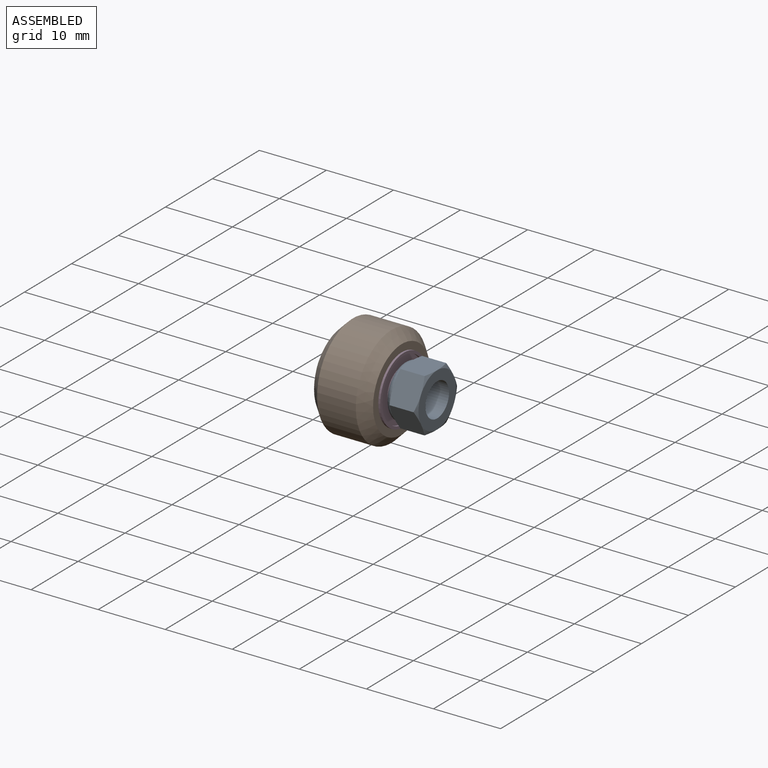
[diagram: assembled view]
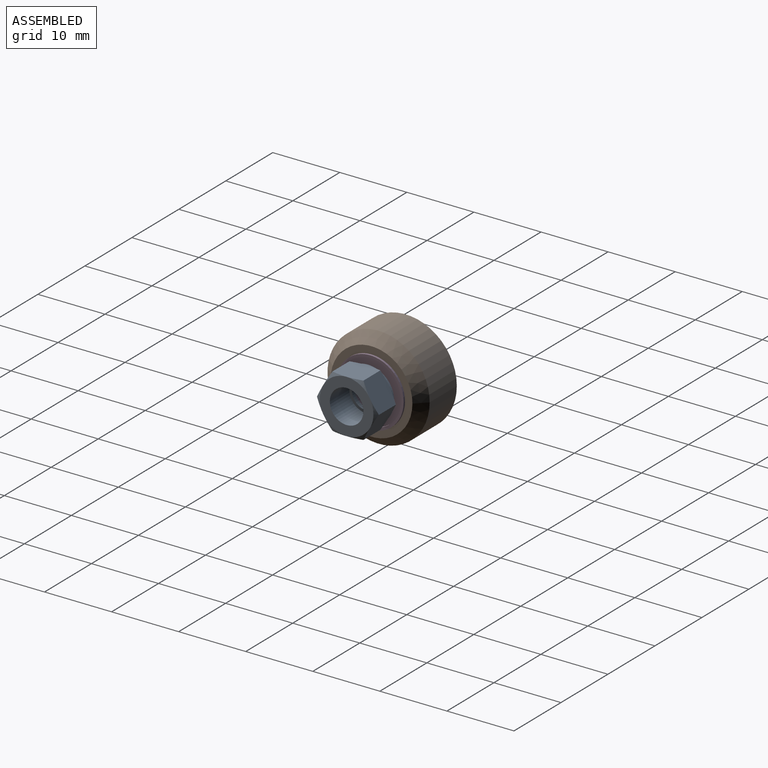
[diagram: assembled view, second angle]
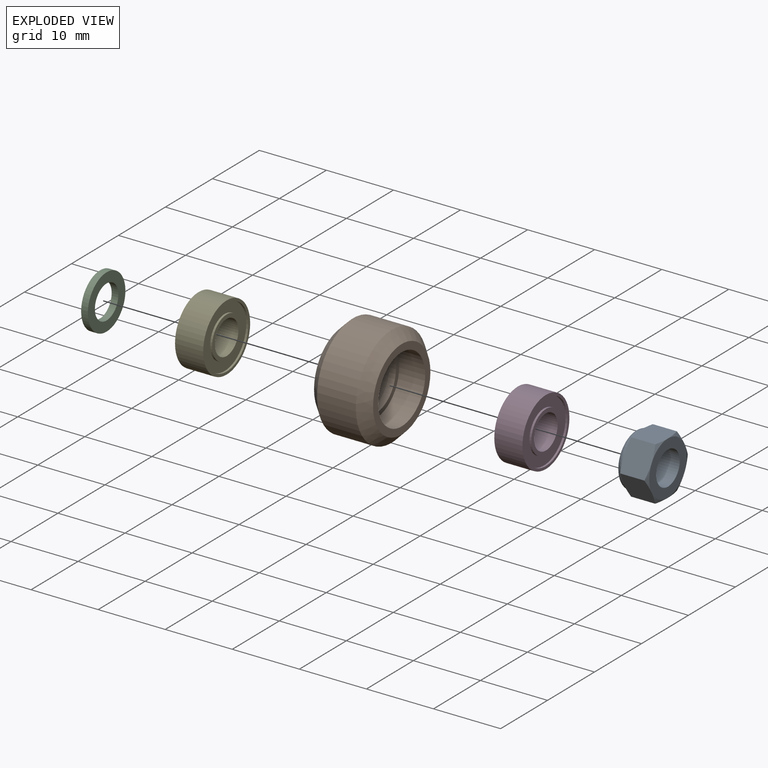
[diagram: exploded view]
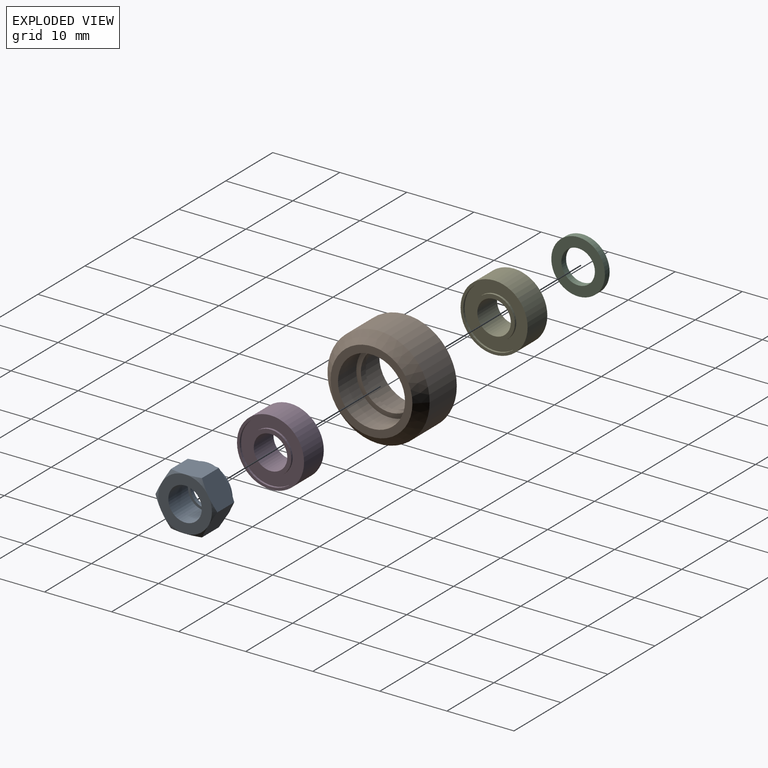
[diagram: exploded view, second angle]
ASSEMBLY  parts=5 mates=4
PART A: 26 faces, bbox 9.6x9.6x5.4 mm
  f0: cylinder r=2.12mm len=4.25mm, axis (0,0,-1), area 8mm2, adj f18,f19
  f1: cylinder r=2.65mm len=5.3mm, axis (0,0,-1), area 3.8mm2, adj f17,f18
  f2: torus R=3.17mm, axis (0,0,-1), area 30.3mm2, adj f4,f11,f12,f13,f14,f15,f17
  f3: cylinder r=2.5mm len=5mm, axis (0,0,-1), area 65.5mm2, adj f16,f19
  f4: cone r=4.75mm half-angle=65deg, axis (0,0,-1), area 1.5mm2, adj f2,f22,f23
  f5: cone r=4mm half-angle=65deg, axis (0,0,1), area 1.5mm2, adj f16,f20,f25
  f6: cone r=4mm half-angle=65deg, axis (0,0,1), area 1.5mm2, adj f16,f22,f23
  f7: cone r=4mm half-angle=65deg, axis (0,0,1), area 1.5mm2, adj f16,f21,f22
  f8: cone r=4mm half-angle=65deg, axis (0,0,1), area 1.5mm2, adj f16,f20,f21
  f9: cone r=4mm half-angle=65deg, axis (0,0,1), area 1.5mm2, adj f16,f23,f24
  f10: cone r=4mm half-angle=65deg, axis (0,0,1), area 1.5mm2, adj f16,f24,f25
  f11: cone r=4.75mm half-angle=65deg, axis (0,0,-1), area 1.5mm2, adj f2,f20,f25
  f12: cone r=4.75mm half-angle=65deg, axis (0,0,-1), area 1.5mm2, adj f2,f20,f21
  f13: cone r=4.75mm half-angle=65deg, axis (0,0,-1), area 1.5mm2, adj f2,f21,f22
  f14: cone r=4.75mm half-angle=65deg, axis (0,0,-1), area 1.5mm2, adj f2,f23,f24
  f15: cone r=4.75mm half-angle=65deg, axis (0,0,-1), area 1.5mm2, adj f2,f24,f25
  f16: plane 8x8mm, normal (0,0,-1), area 30.6mm2, adj f3,f5,f6,f7,f8,f9,f10
  f17: plane 6.34x6.34mm, normal (0,0,1), area 9.5mm2, adj f1,f2
  f18: plane 5.3x5.3mm, normal (0,0,1), area 7.9mm2, adj f0,f1
  f19: plane 5x5mm, normal (0,0,-1), area 5.4mm2, adj f0,f3
  f20: plane 4.53x4.36mm, normal (0.5,-0.87,0), area 18.3mm2, adj f5,f8,f11,f12,f21,f25
  f21: plane 4.98x4.53mm, normal (1,0,0), area 18.3mm2, adj f7,f8,f12,f13,f20,f22
  f22: plane 4.53x4.36mm, normal (0.5,0.87,0), area 18.3mm2, adj f4,f6,f7,f13,f21,f23
  f23: plane 4.53x4.36mm, normal (-0.5,0.87,0), area 18.3mm2, adj f4,f6,f9,f14,f22,f24
  f24: plane 4.98x4.53mm, normal (-1,0,0), area 18.3mm2, adj f9,f10,f14,f15,f23,f25
  f25: plane 4.53x4.36mm, normal (-0.5,-0.87,0), area 18.3mm2, adj f5,f10,f11,f15,f20,f24
PART B: 10 faces, bbox 8.8x15.2x15.2 mm
  f0: cylinder r=5mm len=10mm, axis (1,0,0), area 122.5mm2, adj f6,f9
  f1: cone r=7.62mm half-angle=45deg, axis (1,0,0), area 92mm2, adj f2,f9
  f2: cylinder r=7.62mm len=15.23mm, axis (1,0,0), area 276.6mm2, adj f1,f3
  f3: cone r=6.11mm half-angle=45deg, axis (-1,0,0), area 92mm2, adj f2,f8
  f4: cylinder r=5mm len=10mm, axis (1,0,0), area 122.5mm2, adj f7,f8
  f5: cylinder r=4.32mm len=8.64mm, axis (1,0,0), area 27.1mm2, adj f6,f7
  f6: plane 10x10mm, normal (-1,0,0), area 19.9mm2, adj f0,f5
  f7: plane 10x10mm, normal (1,0,0), area 19.9mm2, adj f4,f5
  f8: plane 12.21x12.21mm, normal (1,0,0), area 38.6mm2, adj f3,f4
  f9: plane 12.21x12.21mm, normal (-1,0,0), area 38.6mm2, adj f0,f1
PART C: 4 faces, bbox 8x8x1 mm
  f0: cylinder r=2.5mm len=5mm, axis (0,0,-1), area 15.7mm2, adj f2,f3
  f1: cylinder r=4mm len=8mm, axis (0,0,-1), area 25.1mm2, adj f2,f3
  f2: plane 8x8mm, normal (0,0,1), area 30.6mm2, adj f0,f1
  f3: plane 8x8mm, normal (0,0,-1), area 30.6mm2, adj f0,f1
PART D: 12 faces, bbox 4.2x10x10 mm
  f0: cylinder r=2.5mm len=5mm, axis (1,0,0), area 66mm2, adj f6,f11
  f1: cylinder r=3.1mm len=6.2mm, axis (1,0,0), area 5.8mm2, adj f10,f11
  f2: cylinder r=4.6mm len=9.2mm, axis (1,0,0), area 8.7mm2, adj f9,f10
  f3: cylinder r=5mm len=10mm, axis (1,0,0), area 131.9mm2, adj f8,f9
  f4: cylinder r=4.6mm len=9.2mm, axis (1,0,0), area 8.7mm2, adj f7,f8
  f5: cylinder r=3.1mm len=6.2mm, axis (1,0,0), area 5.8mm2, adj f6,f7
  f6: plane 6.2x6.2mm, normal (-1,0,0), area 10.6mm2, adj f0,f5
  f7: plane 9.2x9.2mm, normal (-1,0,0), area 36.3mm2, adj f4,f5
  f8: plane 10x10mm, normal (-1,0,0), area 12.1mm2, adj f3,f4
  f9: plane 10x10mm, normal (1,0,0), area 12.1mm2, adj f2,f3
  f10: plane 9.2x9.2mm, normal (1,0,0), area 36.3mm2, adj f1,f2
  f11: plane 6.2x6.2mm, normal (1,0,0), area 10.6mm2, adj f0,f1
PART E: same geometry as D
PLACE A rot(axis=(0,-1,0),90deg) t=(9.01,-0.65,1.01)mm
PLACE B t=(-0.69,-0.65,1.01)mm
PLACE C rot(axis=(0.71,0,0.71),180deg) t=(-6.39,-0.65,1.01)mm
PLACE D t=(1.91,-0.65,1.01)mm
PLACE E t=(-3.29,-0.65,1.01)mm
MATE fastened C.f0 <-> E.f0  axis (1,0,0) through (-5.39,-0.65,1.01)mm
MATE fastened A.f0 <-> D.f0  axis (-1,0,0) through (4.01,-0.65,1.01)mm
MATE fastened E.f0 <-> B.f0  axis (1,0,0) through (-1.19,-0.65,1.01)mm
MATE fastened D.f0 <-> B.f0  axis (-1,0,0) through (-0.19,-0.65,1.01)mm
